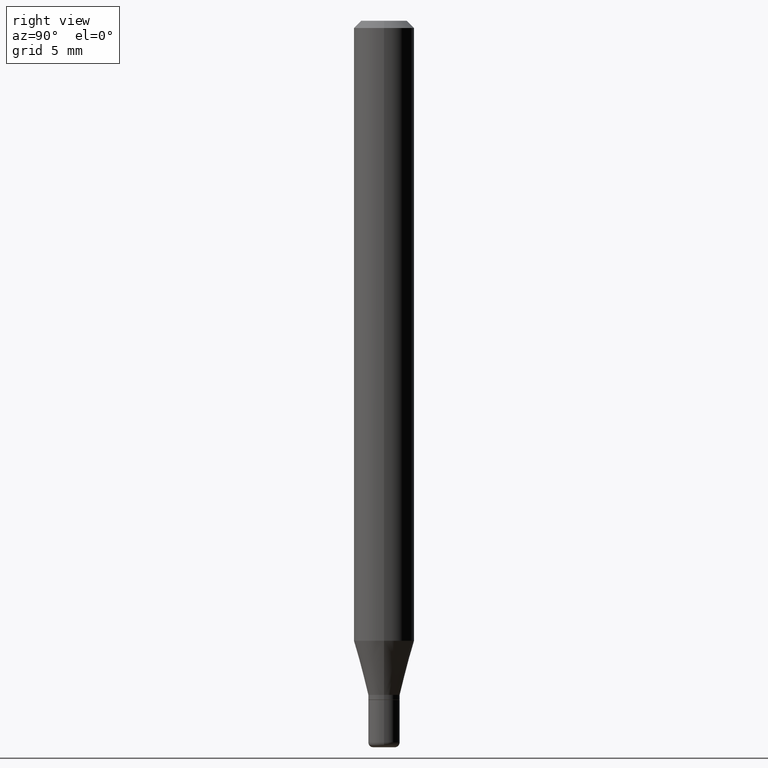
[diagram: clean part render]
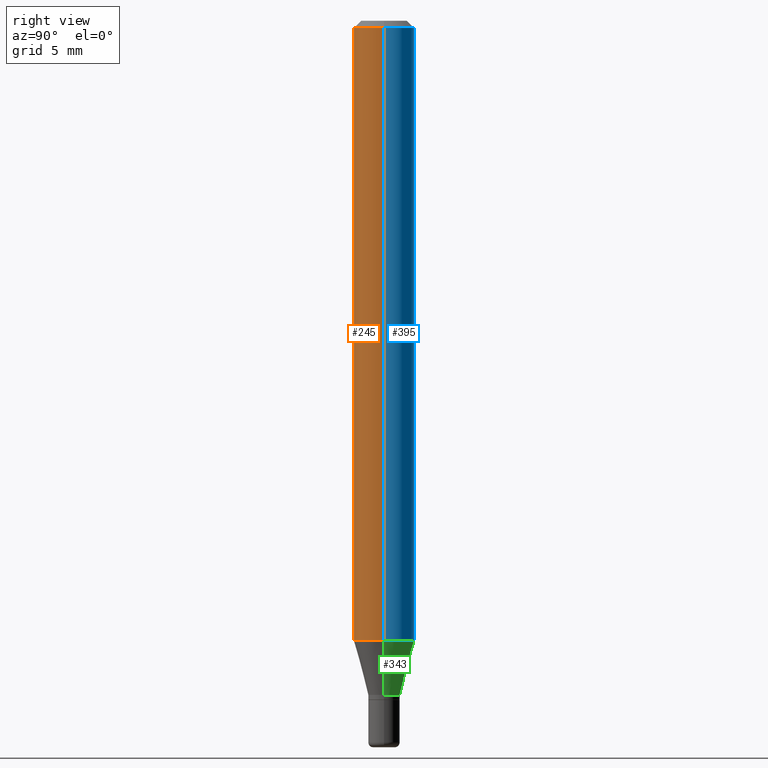
[diagram: same view with three faces highlighted in distinct colors, each labeled with its STEP entity id]
A machine part, right view with three faces highlighted in distinct colors.
Their STEP definitions:

[orange] entity #245 — the highlighted cylindrical surface (edge-blend (fillet) strip) has radius 1.5875 mm, axis along (-0, 0, 1).
#33 = EDGE_LOOP ( 'NONE', ( #126, #35, #61, #485 ) ) ;
#35 = ORIENTED_EDGE ( 'NONE', *, *, #402, .T. ) ;
#61 = ORIENTED_EDGE ( 'NONE', *, *, #204, .T. ) ;
#62 = DIRECTION ( 'NONE',  ( -2.445468806185136877E-29, 3.491481338843145188E-15, 1.000000000000000000 ) ) ;
#102 = VECTOR ( 'NONE', #62, 39.37007874015748143 ) ;
#110 = DIRECTION ( 'NONE',  ( -2.445468806185136597E-29, 3.491481338843145583E-15, 1.000000000000000000 ) ) ;
#111 = VECTOR ( 'NONE', #191, 39.37007874015748143 ) ;
#126 = ORIENTED_EDGE ( 'NONE', *, *, #376, .F. ) ;
#130 = AXIS2_PLACEMENT_3D ( 'NONE', #386, #235, #468 ) ;
#135 = CARTESIAN_POINT ( 'NONE',  ( -0.06250000000000000000, -1.816712125772470647E-15, -0.01499999999999970281 ) ) ;
#153 = CARTESIAN_POINT ( 'NONE',  ( 0.06250000000000000000, -4.905665618517812299E-15, -1.280038475772933504 ) ) ;
#186 = LINE ( 'NONE', #194, #102 ) ;
#189 = CARTESIAN_POINT ( 'NONE',  ( -0.06250000000000000000, -4.025141241312358014E-15, -1.280038475772933504 ) ) ;
#191 = DIRECTION ( 'NONE',  ( -2.445468806185136877E-29, 3.491481338843145188E-15, 1.000000000000000000 ) ) ;
#194 = CARTESIAN_POINT ( 'NONE',  ( 0.06250000000000000000, -4.364351673553916694E-16, 3.047610484872459871E-30 ) ) ;
#200 = CIRCLE ( 'NONE', #358, 0.06250000000000000000 ) ;
#202 = CARTESIAN_POINT ( 'NONE',  ( -0.06250000000000000000, 4.440892098500626162E-16, -3.074334431409316114E-30 ) ) ;
#203 = DIRECTION ( 'NONE',  ( -2.445468806185136597E-29, 3.491481338843145583E-15, 1.000000000000000000 ) ) ;
#204 = EDGE_CURVE ( 'NONE', #415, #246, #186, .T. ) ;
#230 = DIRECTION ( 'NONE',  ( 1.000000000000000000, -6.982962677686266711E-15, 0.000000000000000000 ) ) ;
#235 = DIRECTION ( 'NONE',  ( -2.445468806185136597E-29, 3.491481338843145583E-15, 1.000000000000000000 ) ) ;
#240 = VERTEX_POINT ( 'NONE', #189 ) ;
#245 = ADVANCED_FACE ( 'NONE', ( #507 ), #301, .T. ) ;
#246 = VERTEX_POINT ( 'NONE', #518 ) ;
#268 = CARTESIAN_POINT ( 'NONE',  ( 3.668203209277632395E-31, -5.237222008264614861E-17, -0.01499999999999970281 ) ) ;
#290 = VERTEX_POINT ( 'NONE', #135 ) ;
#301 = CYLINDRICAL_SURFACE ( 'NONE', #448, 0.06250000000000000000 ) ;
#353 = DIRECTION ( 'NONE',  ( 1.000000000000000000, -6.982962677686266711E-15, 4.876176775795935793E-29 ) ) ;
#358 = AXIS2_PLACEMENT_3D ( 'NONE', #268, #110, #230 ) ;
#364 = EDGE_CURVE ( 'NONE', #290, #246, #200, .T. ) ;
#376 = EDGE_CURVE ( 'NONE', #240, #290, #514, .T. ) ;
#380 = CIRCLE ( 'NONE', #130, 0.06250000000000000000 ) ;
#386 = CARTESIAN_POINT ( 'NONE',  ( 3.130294163219477608E-29, -4.469230451162420630E-15, -1.280038475772933504 ) ) ;
#402 = EDGE_CURVE ( 'NONE', #240, #415, #380, .T. ) ;
#415 = VERTEX_POINT ( 'NONE', #153 ) ;
#440 = CARTESIAN_POINT ( 'NONE',  ( 0.000000000000000000, 0.000000000000000000, 0.000000000000000000 ) ) ;
#448 = AXIS2_PLACEMENT_3D ( 'NONE', #440, #203, #353 ) ;
#468 = DIRECTION ( 'NONE',  ( 1.000000000000000000, -6.982962677686262766E-15, 0.000000000000000000 ) ) ;
#485 = ORIENTED_EDGE ( 'NONE', *, *, #364, .F. ) ;
#507 = FACE_OUTER_BOUND ( 'NONE', #33, .T. ) ;
#514 = LINE ( 'NONE', #202, #111 ) ;
#518 = CARTESIAN_POINT ( 'NONE',  ( 0.06250000000000000000, -4.888073874380378612E-16, -0.01499999999999970281 ) ) ;

[blue] entity #395 — the highlighted cylindrical surface (edge-blend (fillet) strip) has radius 1.5875 mm, axis along (-0, 0, 1).
#18 = EDGE_CURVE ( 'NONE', #246, #290, #471, .T. ) ;
#27 = FACE_OUTER_BOUND ( 'NONE', #107, .T. ) ;
#52 = ORIENTED_EDGE ( 'NONE', *, *, #18, .F. ) ;
#57 = AXIS2_PLACEMENT_3D ( 'NONE', #309, #63, #199 ) ;
#62 = DIRECTION ( 'NONE',  ( -2.445468806185136877E-29, 3.491481338843145188E-15, 1.000000000000000000 ) ) ;
#63 = DIRECTION ( 'NONE',  ( -2.445468806185136597E-29, 3.491481338843145583E-15, 1.000000000000000000 ) ) ;
#65 = CIRCLE ( 'NONE', #76, 0.06250000000000000000 ) ;
#76 = AXIS2_PLACEMENT_3D ( 'NONE', #305, #472, #114 ) ;
#93 = CARTESIAN_POINT ( 'NONE',  ( 3.668203209277632395E-31, -5.237222008264614861E-17, -0.01499999999999970281 ) ) ;
#102 = VECTOR ( 'NONE', #62, 39.37007874015748143 ) ;
#107 = EDGE_LOOP ( 'NONE', ( #169, #316, #52, #498 ) ) ;
#111 = VECTOR ( 'NONE', #191, 39.37007874015748143 ) ;
#114 = DIRECTION ( 'NONE',  ( 1.000000000000000000, -6.982962677686262766E-15, 0.000000000000000000 ) ) ;
#131 = DIRECTION ( 'NONE',  ( 1.000000000000000000, -6.982962677686266711E-15, 0.000000000000000000 ) ) ;
#135 = CARTESIAN_POINT ( 'NONE',  ( -0.06250000000000000000, -1.816712125772470647E-15, -0.01499999999999970281 ) ) ;
#138 = AXIS2_PLACEMENT_3D ( 'NONE', #93, #497, #131 ) ;
#153 = CARTESIAN_POINT ( 'NONE',  ( 0.06250000000000000000, -4.905665618517812299E-15, -1.280038475772933504 ) ) ;
#169 = ORIENTED_EDGE ( 'NONE', *, *, #417, .T. ) ;
#186 = LINE ( 'NONE', #194, #102 ) ;
#189 = CARTESIAN_POINT ( 'NONE',  ( -0.06250000000000000000, -4.025141241312358014E-15, -1.280038475772933504 ) ) ;
#191 = DIRECTION ( 'NONE',  ( -2.445468806185136877E-29, 3.491481338843145188E-15, 1.000000000000000000 ) ) ;
#194 = CARTESIAN_POINT ( 'NONE',  ( 0.06250000000000000000, -4.364351673553916694E-16, 3.047610484872459871E-30 ) ) ;
#199 = DIRECTION ( 'NONE',  ( 1.000000000000000000, -6.982962677686266711E-15, 4.876176775795935793E-29 ) ) ;
#202 = CARTESIAN_POINT ( 'NONE',  ( -0.06250000000000000000, 4.440892098500626162E-16, -3.074334431409316114E-30 ) ) ;
#204 = EDGE_CURVE ( 'NONE', #415, #246, #186, .T. ) ;
#240 = VERTEX_POINT ( 'NONE', #189 ) ;
#246 = VERTEX_POINT ( 'NONE', #518 ) ;
#273 = CYLINDRICAL_SURFACE ( 'NONE', #57, 0.06250000000000000000 ) ;
#290 = VERTEX_POINT ( 'NONE', #135 ) ;
#305 = CARTESIAN_POINT ( 'NONE',  ( 3.130294163219477608E-29, -4.469230451162420630E-15, -1.280038475772933504 ) ) ;
#309 = CARTESIAN_POINT ( 'NONE',  ( 0.000000000000000000, 0.000000000000000000, 0.000000000000000000 ) ) ;
#316 = ORIENTED_EDGE ( 'NONE', *, *, #376, .T. ) ;
#376 = EDGE_CURVE ( 'NONE', #240, #290, #514, .T. ) ;
#395 = ADVANCED_FACE ( 'NONE', ( #27 ), #273, .T. ) ;
#415 = VERTEX_POINT ( 'NONE', #153 ) ;
#417 = EDGE_CURVE ( 'NONE', #415, #240, #65, .T. ) ;
#471 = CIRCLE ( 'NONE', #138, 0.06250000000000000000 ) ;
#472 = DIRECTION ( 'NONE',  ( -2.445468806185136597E-29, 3.491481338843145583E-15, 1.000000000000000000 ) ) ;
#497 = DIRECTION ( 'NONE',  ( -2.445468806185136597E-29, 3.491481338843145583E-15, 1.000000000000000000 ) ) ;
#498 = ORIENTED_EDGE ( 'NONE', *, *, #204, .F. ) ;
#514 = LINE ( 'NONE', #202, #111 ) ;
#518 = CARTESIAN_POINT ( 'NONE',  ( 0.06250000000000000000, -4.888073874380378612E-16, -0.01499999999999970281 ) ) ;

[green] entity #343 — the highlighted conical surface has half-angle 15 deg.
#23 = DIRECTION ( 'NONE',  ( 1.000000000000000000, -6.982962677686262766E-15, 0.000000000000000000 ) ) ;
#30 = VECTOR ( 'NONE', #476, 39.37007874015748143 ) ;
#50 = VERTEX_POINT ( 'NONE', #458 ) ;
#65 = CIRCLE ( 'NONE', #76, 0.06250000000000000000 ) ;
#66 = CARTESIAN_POINT ( 'NONE',  ( 3.404092578209710223E-29, -4.860142023669658418E-15, -1.392000000000000126 ) ) ;
#76 = AXIS2_PLACEMENT_3D ( 'NONE', #305, #472, #114 ) ;
#114 = DIRECTION ( 'NONE',  ( 1.000000000000000000, -6.982962677686262766E-15, 0.000000000000000000 ) ) ;
#117 = DIRECTION ( 'NONE',  ( 1.000000000000000000, -6.982962677686262766E-15, 0.000000000000000000 ) ) ;
#120 = CARTESIAN_POINT ( 'NONE',  ( 0.03249999999999998029, -5.087088310694461770E-15, -1.392000000000000126 ) ) ;
#151 = FACE_OUTER_BOUND ( 'NONE', #252, .T. ) ;
#153 = CARTESIAN_POINT ( 'NONE',  ( 0.06250000000000000000, -4.905665618517812299E-15, -1.280038475772933504 ) ) ;
#162 = DIRECTION ( 'NONE',  ( 0.2588190451025204064, 1.565188264969629659E-15, 0.9659258262890684232 ) ) ;
#172 = CONICAL_SURFACE ( 'NONE', #392, 0.03249999999999998029, 0.2617993877991490748 ) ;
#182 = CIRCLE ( 'NONE', #368, 0.03249999999999998029 ) ;
#189 = CARTESIAN_POINT ( 'NONE',  ( -0.06250000000000000000, -4.025141241312358014E-15, -1.280038475772933504 ) ) ;
#232 = VECTOR ( 'NONE', #162, 39.37007874015748143 ) ;
#240 = VERTEX_POINT ( 'NONE', #189 ) ;
#252 = EDGE_LOOP ( 'NONE', ( #464, #259, #483, #399 ) ) ;
#255 = EDGE_CURVE ( 'NONE', #495, #415, #475, .T. ) ;
#259 = ORIENTED_EDGE ( 'NONE', *, *, #450, .T. ) ;
#305 = CARTESIAN_POINT ( 'NONE',  ( 3.130294163219477608E-29, -4.469230451162420630E-15, -1.280038475772933504 ) ) ;
#343 = ADVANCED_FACE ( 'NONE', ( #151 ), #172, .T. ) ;
#351 = DIRECTION ( 'NONE',  ( -2.445468806185136597E-29, 3.491481338843145583E-15, 1.000000000000000000 ) ) ;
#366 = CARTESIAN_POINT ( 'NONE',  ( 0.03249999999999998029, -5.087088310694461770E-15, -1.392000000000000126 ) ) ;
#368 = AXIS2_PLACEMENT_3D ( 'NONE', #66, #351, #23 ) ;
#383 = EDGE_CURVE ( 'NONE', #495, #50, #182, .T. ) ;
#392 = AXIS2_PLACEMENT_3D ( 'NONE', #467, #431, #117 ) ;
#396 = LINE ( 'NONE', #444, #30 ) ;
#399 = ORIENTED_EDGE ( 'NONE', *, *, #255, .F. ) ;
#415 = VERTEX_POINT ( 'NONE', #153 ) ;
#417 = EDGE_CURVE ( 'NONE', #415, #240, #65, .T. ) ;
#431 = DIRECTION ( 'NONE',  ( -2.445468806185136597E-29, 3.491481338843145583E-15, 1.000000000000000000 ) ) ;
#444 = CARTESIAN_POINT ( 'NONE',  ( -0.03249999999999998029, -4.629215634547626046E-15, -1.392000000000000126 ) ) ;
#450 = EDGE_CURVE ( 'NONE', #50, #240, #396, .T. ) ;
#458 = CARTESIAN_POINT ( 'NONE',  ( -0.03249999999999998029, -4.327178437929992425E-15, -1.392000000000000126 ) ) ;
#464 = ORIENTED_EDGE ( 'NONE', *, *, #383, .T. ) ;
#467 = CARTESIAN_POINT ( 'NONE',  ( 3.404092578209710223E-29, -4.860142023669658418E-15, -1.392000000000000126 ) ) ;
#472 = DIRECTION ( 'NONE',  ( -2.445468806185136597E-29, 3.491481338843145583E-15, 1.000000000000000000 ) ) ;
#475 = LINE ( 'NONE', #120, #232 ) ;
#476 = DIRECTION ( 'NONE',  ( -0.2588190451025204064, 5.211531920934543942E-15, 0.9659258262890684232 ) ) ;
#483 = ORIENTED_EDGE ( 'NONE', *, *, #417, .F. ) ;
#495 = VERTEX_POINT ( 'NONE', #366 ) ;